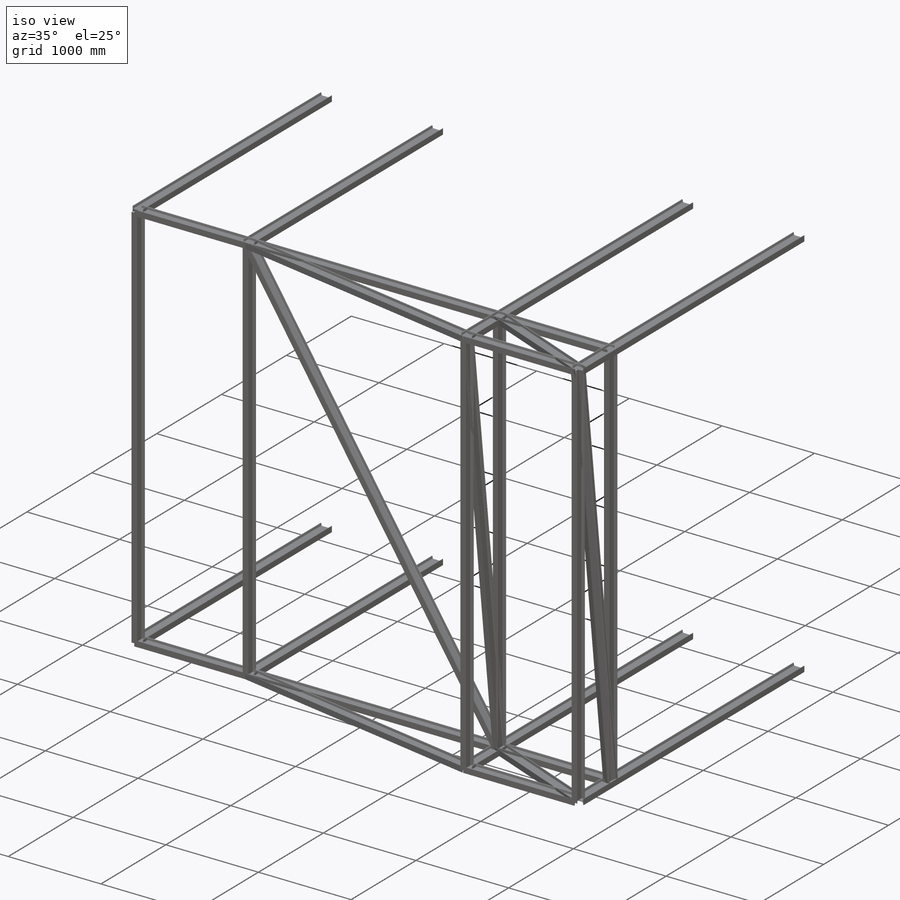
[diagram: iso view]
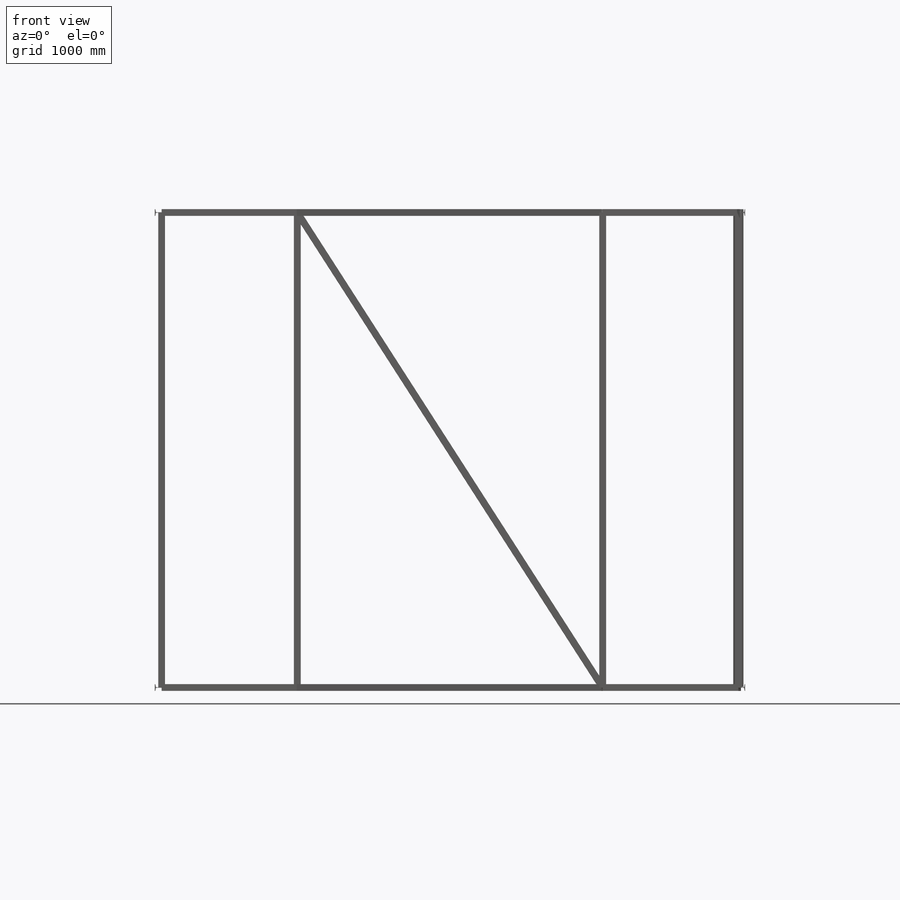
[diagram: front view]
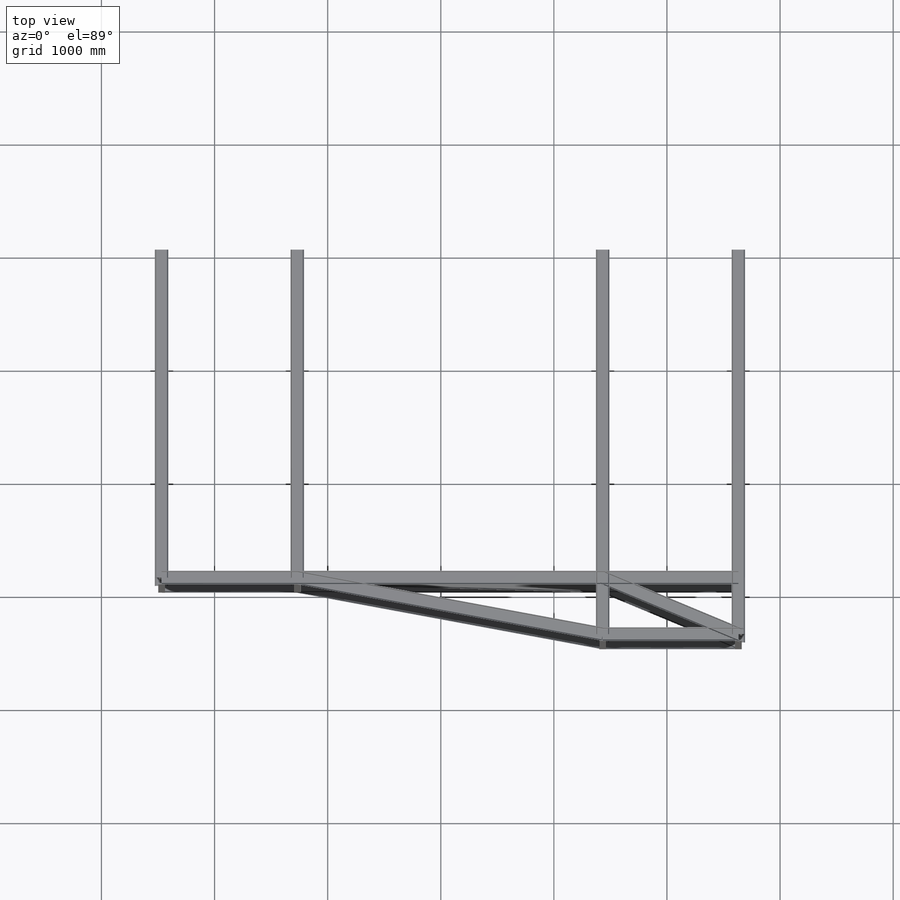
[diagram: top view]
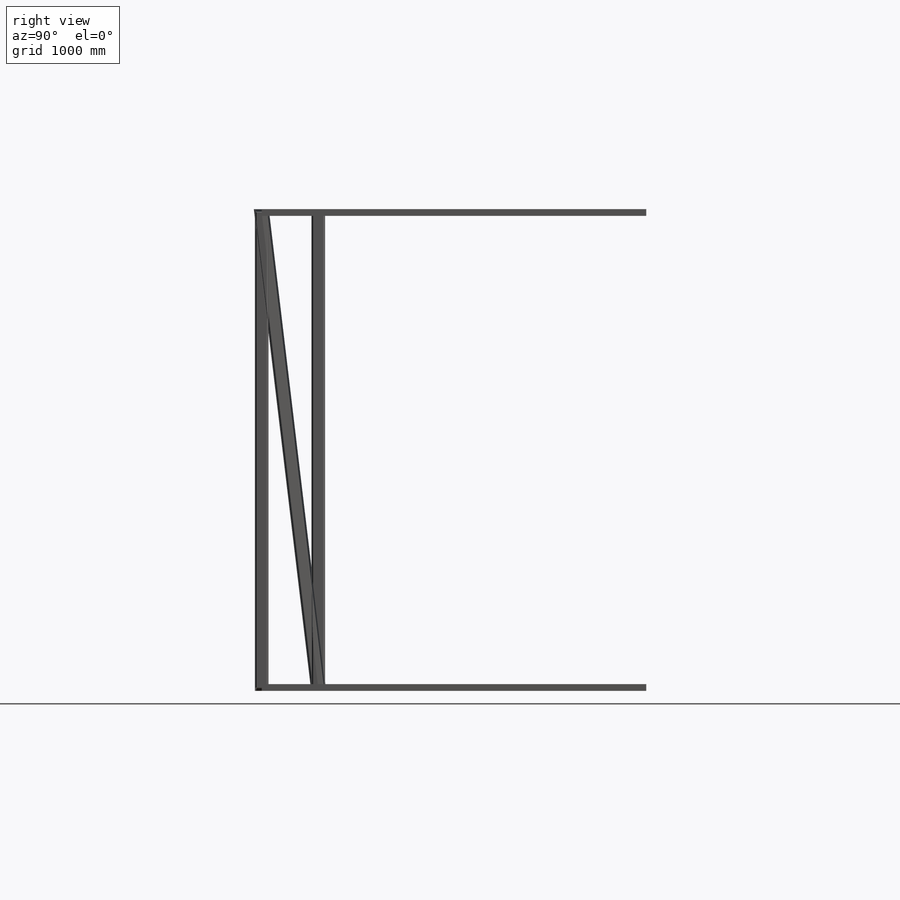
[diagram: right view]
SOLIDWORKS PART (.sldprt)
format: sldprt  version: not decoded by parser v0  size: 1,410,048 bytes
history: native  units: mm
features: sketch x27, plane x13, extrude x2, material x1 (+16 scaffold rows collapsed)
feature tree (59):
  scaffold x16  (default folders/planes/origin — collapsed)
  material  "Material <not specified>"
  plane  "Plane4"  Offset=4750mm
  sketch  "Sketch2"  dims[D1=200.0mm D2=200.0mm D3=150.0mm D4=200.0mm D5=700.0mm D6=150.0mm D7=2600.0mm D8=3800.0mm D9=5250.0mm D10=4200.0mm]
  sketch  "3DSketch6"  dims[c1.D1=4750.0mm c1.D2=4750.0mm c2.D1=4750.0mm c2.D2=4750.0mm c3.D1=~704.669112mm c3.D7=1000.0mm c3.D2=~5642.046647mm c3.D3=~1898.222859mm c4.D7=1800.0mm c4.D4=~2578.098569mm c4.D26=2600.0mm c4.D5=~1325.513728mm c4.D3=1100.0mm c4.D6=~9081.410274mm c5.D7=~4244.283907mm c5.D9=4200.0mm c5.D8=~5314.143543mm c6.D7=5300.0mm c6.D9=~627.270684mm c6.D11=600.0mm c6.D10=~2299.917483mm c6.D3=750.0mm c6.D6=484.0mm c7.D7=484.0mm c7.D6=484.0mm c8.D7=484.0mm c8.D6=~462.082534mm c8.D3=1400.0mm c9.D7=484.0mm c9.D26=1100.0mm c9.D8=~249.422408mm c10.D7=250.0mm c10.D9=~3409.494459mm c11.D7=4000.0mm c11.D11=2900.0mm c11.D12=2900.0mm c11.D13=2900.0mm c11.D14=4200.0mm c11.D15=~5795.897032mm c11.D24=5200.0mm c11.D16=2900.0mm c11.D17=2900.0mm c11.D18=1200.0mm c11.D19=1200.0mm c11.D20=2900.0mm c11.D21=2900.0mm c11.D22=1200.0mm c11.D23=500.0mm c12.D15=5100.0mm c12.D24=4500.0mm c12.D7=4750.0mm c12.D25=~1148.425725mm c12.D29=800.0mm c12.D26=~1099.521668mm c12.D38=600.0mm c12.D27=~923.991549mm c12.D28=700.0mm c13.D27=~416.681994mm c13.D28=600.0mm c14.D27=~840.660672mm c14.D28=900.0mm c15.D27=900.0mm c15.D28=800.0mm c16.D27=600.0mm c16.D7=1000.0mm c16.D28=800.0mm c16.D29=800.0mm c17.D28=800.0mm c17.D3=800.0mm c17.D25=624.4998mm c18.D3=600.0mm c18.D29=~2222.645105mm c18.D30=1450.0mm c18.D31=1450.0mm c19.D29=1450.0mm c19.D7=2100.0mm c19.D30=~670.370039mm c20.D7=800.0mm c20.D31=~1166.100472mm c20.D33=800.0mm c20.D32=~1698.691904mm c20.D26=800.0mm c21.D33=~812.855017mm c21.D34=800.0mm c21.D31=~1807.764245mm c21.D26=1100.0mm c22.D33=~9335.589596mm c22.D26=1100.0mm c22.D34=~1200.68595mm c23.D26=1100.0mm c23.D35=~1658.822802mm c23.D36=~1658.822802mm c24.D35=~1658.822802mm c24.D36=~1658.822802mm c25.D35=~1106.371533mm c25.D26=~1106.371533mm c25.D36=~1831.13982mm c26.D26=1100.0mm c26.D37=~2087.720177mm c27.D26=1100.0mm c27.D38=~2535.027655mm c27.D42=2500.0mm c27.D39=~1722.068417mm c27.D40=1100.0mm c28.D39=~353.438816mm c28.D7=200.0mm c28.D40=~1004.437449mm c28.D3=800.0mm c28.D41=1100.0mm c28.D42=1500.0mm c29.D41=1100.0mm c29.D42=1100.0mm c30.D41=1100.0mm c30.D26=1500.0mm c30.D42=1100.0mm c30.D43=1100.0mm c31.D42=~1181.451797mm c31.D43=1100.0mm]
  plane  "Plane7"
  sketch  "Sketch11"  dims[c1.D5=6.35mm c1.D7=2.54mm c1.D8=2.54mm c1.D10=2.54mm c1.RI=8.0mm c1.RA=2.54mm c1.BF=60.0mm c1.D2=6.35mm c1.D3=44.45mm c1.D4=12.7mm c1.D6=90.0deg c2.D2=97.0deg c2.D7=90.0deg c2.D8=6.35mm c2.D9=90.0deg c2.D10=19.05mm c3.D2=90.0deg c3.D6=99.0deg c3.D7=19.05mm c3.D9=99.0deg c3.D12=5.08mm c3.D8=19.05mm c4.D6=90.0deg c4.DEPTH=120.0mm c4.TW=5.0mm c5.D6=90.0deg c5.D7=90.0deg c5.D8=16.51mm c5.D1=86.662mm c6.D6=~19.183835mm c7.D6=9.463deg c7.D7=~13.491778mm c8.D7=9.463deg c8.TF=6.0mm c8.D2=40.0mm c9.D2=9.463deg]
  sketch  "Structural Member6"
  plane  "Plane11"
  sketch  "Sketch15"  dims[c1.D5=6.35mm c1.D7=2.54mm c1.D8=2.54mm c1.D10=2.54mm c1.RI=8.0mm c1.RA=2.54mm c1.BF=60.0mm c1.D2=6.35mm c1.D3=44.45mm c1.D4=12.7mm c1.D6=90.0deg c2.D2=97.0deg c2.D7=90.0deg c2.D8=6.35mm c2.D9=90.0deg c2.D10=19.05mm c3.D2=90.0deg c3.D6=99.0deg c3.D7=19.05mm c3.D9=99.0deg c3.D12=5.08mm c3.D8=19.05mm c4.D6=90.0deg c4.DEPTH=120.0mm c4.TW=5.0mm c5.D6=90.0deg c5.D7=90.0deg c5.D8=16.51mm c5.D1=86.662mm c6.D6=~19.183835mm c7.D6=9.463deg c7.D7=~13.491778mm c8.D7=9.463deg c8.TF=6.0mm c8.D2=40.0mm c9.D2=9.463deg]
  sketch  "Structural Member7"
  plane  "Plane12"
  sketch  "Sketch16"  dims[c1.D5=6.35mm c1.D7=2.54mm c1.D8=2.54mm c1.D10=2.54mm c1.RI=8.0mm c1.RA=2.54mm c1.BF=60.0mm c1.D2=6.35mm c1.D3=44.45mm c1.D4=12.7mm c1.D6=90.0deg c2.D2=97.0deg c2.D7=90.0deg c2.D8=6.35mm c2.D9=90.0deg c2.D10=19.05mm c3.D2=90.0deg c3.D6=99.0deg c3.D7=19.05mm c3.D9=99.0deg c3.D12=5.08mm c3.D8=19.05mm c4.D6=90.0deg c4.DEPTH=120.0mm c4.TW=5.0mm c5.D6=90.0deg c5.D7=90.0deg c5.D8=16.51mm c5.D1=86.662mm c6.D6=~19.183835mm c7.D6=9.463deg c7.D7=~13.491778mm c8.D7=9.463deg c8.TF=6.0mm c8.D2=40.0mm c9.D2=9.463deg]
  sketch  "Structural Member10"
  plane  "Plane16"
  sketch  "Sketch110"  dims[c1.D5=6.35mm c1.D7=2.54mm c1.D8=2.54mm c1.D10=2.54mm c1.RI=8.0mm c1.RA=2.54mm c1.BF=60.0mm c1.D2=6.35mm c1.D3=44.45mm c1.D4=12.7mm c1.D6=90.0deg c2.D2=97.0deg c2.D7=90.0deg c2.D8=6.35mm c2.D9=90.0deg c2.D10=19.05mm c3.D2=90.0deg c3.D6=99.0deg c3.D7=19.05mm c3.D9=99.0deg c3.D12=5.08mm c3.D8=19.05mm c4.D6=90.0deg c4.DEPTH=120.0mm c4.TW=5.0mm c5.D6=90.0deg c5.D7=90.0deg c5.D8=16.51mm c5.D1=86.662mm c6.D6=~19.183835mm c7.D6=9.463deg c7.D7=~13.491778mm c8.D7=9.463deg c8.TF=6.0mm c8.D2=40.0mm c9.D2=9.463deg]
  sketch  "Structural Member11"
  plane  "Plane17"
  sketch  "Sketch111"  dims[c1.D5=6.35mm c1.D7=2.54mm c1.D8=2.54mm c1.D10=2.54mm c1.RI=8.0mm c1.RA=2.54mm c1.BF=60.0mm c1.D2=6.35mm c1.D3=44.45mm c1.D4=12.7mm c1.D6=90.0deg c2.D2=97.0deg c2.D7=90.0deg c2.D8=6.35mm c2.D9=90.0deg c2.D10=19.05mm c3.D2=90.0deg c3.D6=99.0deg c3.D7=19.05mm c3.D9=99.0deg c3.D12=5.08mm c3.D8=19.05mm c4.D6=90.0deg c4.DEPTH=120.0mm c4.TW=5.0mm c5.D6=90.0deg c5.D7=90.0deg c5.D8=16.51mm c5.D1=86.662mm c6.D6=~19.183835mm c7.D6=9.463deg c7.D7=~13.491778mm c8.D7=9.463deg c8.TF=6.0mm c8.D2=40.0mm c9.D2=9.463deg]
  sketch  "Structural Member12"
  plane  "Plane18"
  sketch  "Sketch112"  dims[c1.D5=6.35mm c1.D7=2.54mm c1.D8=2.54mm c1.D10=2.54mm c1.RI=8.0mm c1.RA=2.54mm c1.BF=60.0mm c1.D2=6.35mm c1.D3=44.45mm c1.D4=12.7mm c1.D6=90.0deg c2.D2=97.0deg c2.D7=90.0deg c2.D8=6.35mm c2.D9=90.0deg c2.D10=19.05mm c3.D2=90.0deg c3.D6=99.0deg c3.D7=19.05mm c3.D9=99.0deg c3.D12=5.08mm c3.D8=19.05mm c4.D6=90.0deg c4.DEPTH=120.0mm c4.TW=5.0mm c5.D6=90.0deg c5.D7=90.0deg c5.D8=16.51mm c5.D1=86.662mm c6.D6=~19.183835mm c7.D6=9.463deg c7.D7=~13.491778mm c8.D7=9.463deg c8.TF=6.0mm c8.D2=40.0mm c9.D2=9.463deg]
  sketch  "Structural Member15"
  plane  "Plane21"
  sketch  "Sketch115"  dims[c1.D5=6.35mm c1.D7=2.54mm c1.D8=2.54mm c1.D10=2.54mm c1.RI=8.0mm c1.RA=2.54mm c1.BF=60.0mm c1.D2=6.35mm c1.D3=44.45mm c1.D4=12.7mm c1.D6=90.0deg c2.D2=97.0deg c2.D7=90.0deg c2.D8=6.35mm c2.D9=90.0deg c2.D10=19.05mm c3.D2=90.0deg c3.D6=99.0deg c3.D7=19.05mm c3.D9=99.0deg c3.D12=5.08mm c3.D8=19.05mm c4.D6=90.0deg c4.DEPTH=120.0mm c4.TW=5.0mm c5.D6=90.0deg c5.D7=90.0deg c5.D8=16.51mm c5.D1=86.662mm c6.D6=~19.183835mm c7.D6=9.463deg c7.D7=~13.491778mm c8.D7=9.463deg c8.TF=6.0mm c8.D2=40.0mm c9.D2=9.463deg]
  sketch  "Structural Member16"
  plane  "Plane22"
  sketch  "Sketch116"  dims[c1.D5=6.35mm c1.D7=2.54mm c1.D8=2.54mm c1.D10=2.54mm c1.RI=8.0mm c1.RA=2.54mm c1.BF=60.0mm c1.D2=6.35mm c1.D3=44.45mm c1.D4=12.7mm c1.D6=90.0deg c2.D2=97.0deg c2.D7=90.0deg c2.D8=6.35mm c2.D9=90.0deg c2.D10=19.05mm c3.D2=90.0deg c3.D6=99.0deg c3.D7=19.05mm c3.D9=99.0deg c3.D12=5.08mm c3.D8=19.05mm c4.D6=90.0deg c4.DEPTH=120.0mm c4.TW=5.0mm c5.D6=90.0deg c5.D7=90.0deg c5.D8=16.51mm c5.D1=86.662mm c6.D6=~19.183835mm c7.D6=9.463deg c7.D7=~13.491778mm c8.D7=9.463deg c8.TF=6.0mm c8.D2=40.0mm c9.D2=9.463deg]
  sketch  "Structural Member17"
  plane  "Plane23"
  sketch  "Sketch117"  dims[c1.D5=6.35mm c1.D7=2.54mm c1.D8=2.54mm c1.D10=2.54mm c1.RI=8.0mm c1.RA=2.54mm c1.BF=60.0mm c1.D2=6.35mm c1.D3=44.45mm c1.D4=12.7mm c1.D6=90.0deg c2.D2=97.0deg c2.D7=90.0deg c2.D8=6.35mm c2.D9=90.0deg c2.D10=19.05mm c3.D2=90.0deg c3.D6=99.0deg c3.D7=19.05mm c3.D9=99.0deg c3.D12=5.08mm c3.D8=19.05mm c4.D6=90.0deg c4.DEPTH=120.0mm c4.TW=5.0mm c5.D6=90.0deg c5.D7=90.0deg c5.D8=16.51mm c5.D1=86.662mm c6.D6=~19.183835mm c7.D6=9.463deg c7.D7=~13.491778mm c8.D7=9.463deg c8.TF=6.0mm c8.D2=40.0mm c9.D2=9.463deg]
  sketch  "Structural Member24"
  plane  "Plane30"
  sketch  "Sketch124"  dims[c1.D5=6.35mm c1.D7=2.54mm c1.D8=2.54mm c1.D10=2.54mm c1.RI=8.0mm c1.RA=2.54mm c1.BF=60.0mm c1.D2=6.35mm c1.D3=44.45mm c1.D4=12.7mm c1.D6=90.0deg c2.D2=97.0deg c2.D7=90.0deg c2.D8=6.35mm c2.D9=90.0deg c2.D10=19.05mm c3.D2=90.0deg c3.D6=99.0deg c3.D7=19.05mm c3.D9=99.0deg c3.D12=5.08mm c3.D8=19.05mm c4.D6=90.0deg c4.DEPTH=120.0mm c4.TW=5.0mm c5.D6=90.0deg c5.D7=90.0deg c5.D8=16.51mm c5.D1=86.662mm c6.D6=~19.183835mm c7.D6=9.463deg c7.D7=~13.491778mm c8.D7=9.463deg c8.TF=6.0mm c8.D2=40.0mm c9.D2=9.463deg]
  sketch  "Structural Member25"
  plane  "Plane31"
  sketch  "Sketch1"  dims[c1.D5=6.35mm c1.D7=2.54mm c1.D8=2.54mm c1.D10=2.54mm c1.RI=8.0mm c1.RA=2.54mm c1.BF=60.0mm c1.D2=6.35mm c1.D3=44.45mm c1.D4=12.7mm c1.D6=90.0deg c2.D2=97.0deg c2.D7=90.0deg c2.D8=6.35mm c2.D9=90.0deg c2.D10=19.05mm c3.D2=90.0deg c3.D6=99.0deg c3.D7=19.05mm c3.D9=99.0deg c3.D12=5.08mm c3.D8=19.05mm c4.D6=90.0deg c4.DEPTH=120.0mm c4.TW=5.0mm c5.D6=90.0deg c5.D7=90.0deg c5.D8=16.51mm c5.D1=86.662mm c6.D6=~19.183835mm c7.D6=9.463deg c7.D7=~13.491778mm c8.D7=9.463deg c8.TF=6.0mm c8.D2=40.0mm c9.D2=9.463deg]
  sketch  "Structural Member26"
  plane  "Plane32"
  sketch  "Sketch126"  dims[c1.D5=6.35mm c1.D7=2.54mm c1.D8=2.54mm c1.D10=2.54mm c1.RI=8.0mm c1.RA=2.54mm c1.BF=60.0mm c1.D2=6.35mm c1.D3=44.45mm c1.D4=12.7mm c1.D6=90.0deg c2.D2=97.0deg c2.D7=90.0deg c2.D8=6.35mm c2.D9=90.0deg c2.D10=19.05mm c3.D2=90.0deg c3.D6=99.0deg c3.D7=19.05mm c3.D9=99.0deg c3.D12=5.08mm c3.D8=19.05mm c4.D6=90.0deg c4.DEPTH=120.0mm c4.TW=5.0mm c5.D6=90.0deg c5.D7=90.0deg c5.D8=16.51mm c5.D1=86.662mm c6.D6=~19.183835mm c7.D6=9.463deg c7.D7=~13.491778mm c8.D7=9.463deg c8.TF=6.0mm c8.D2=40.0mm c9.D2=9.463deg]
  sketch  "Sketch127"
  extrude  "Extrude1"  Depth=200mm
  sketch  "Sketch128"
  extrude  "Extrude2"  Depth=200mm
decode coverage: 16 of 29 modeling features carry decoded parameters
note: ~ marks probable driven/reference dimensions
note: suppression state not decoded; provenance and decode notes live in map.json
